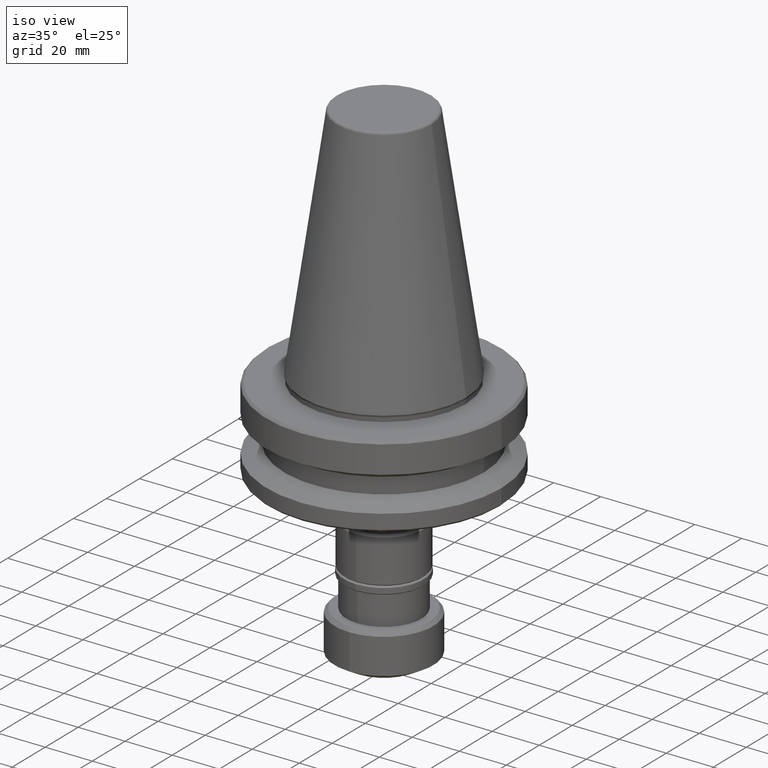
[diagram: clean part render]
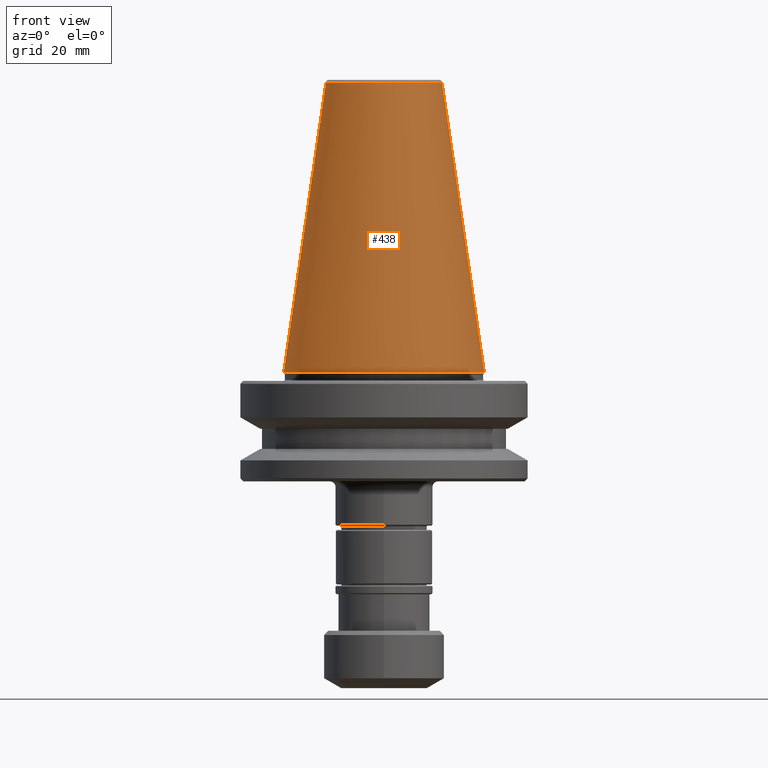
[diagram: tour spotlight — one face highlighted and labeled with its STEP entity id]
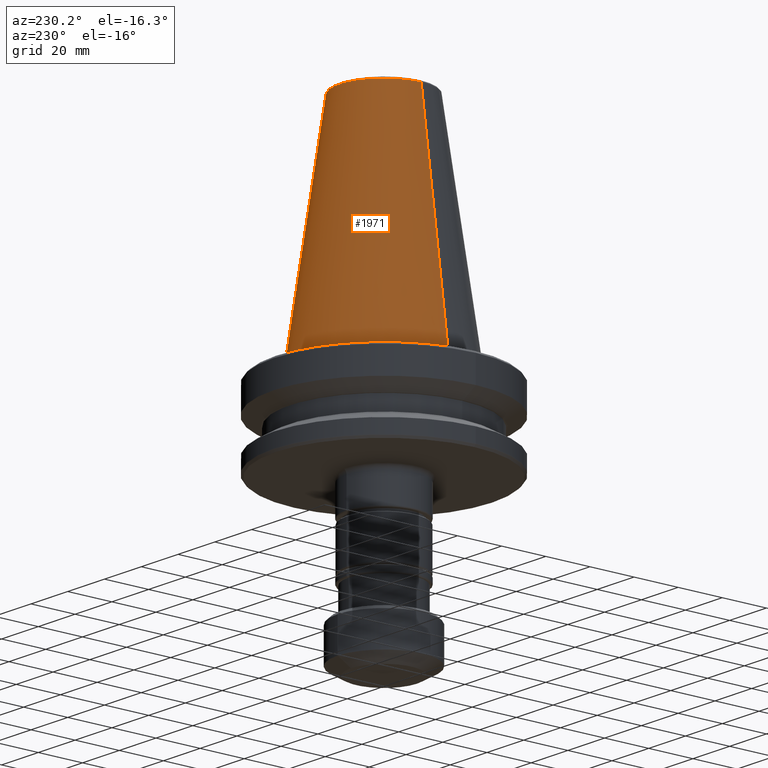
[diagram: tour spotlight — one face highlighted and labeled with its STEP entity id]
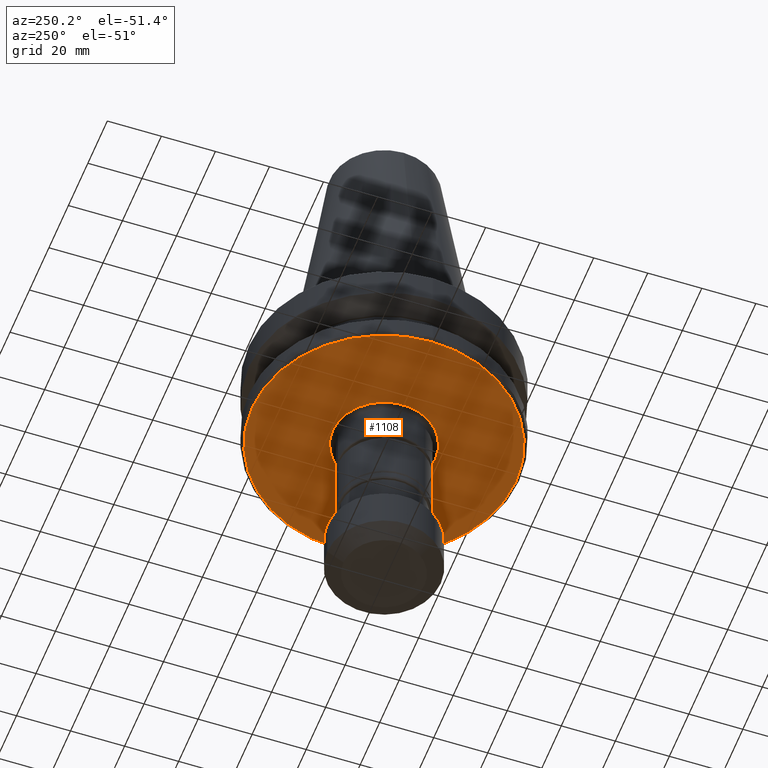
[diagram: tour spotlight — one face highlighted and labeled with its STEP entity id]
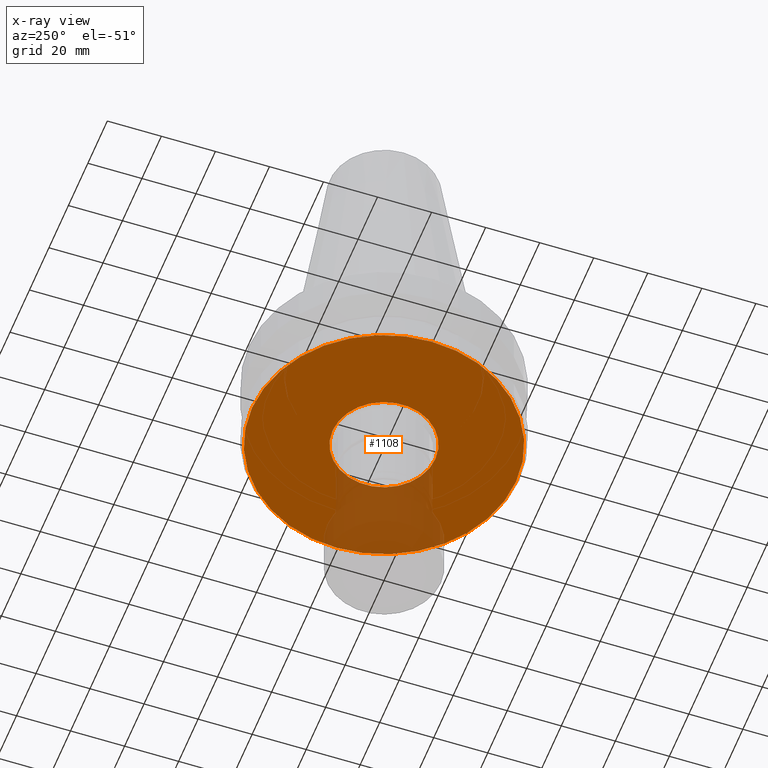
[diagram: x-ray of the same camera — body ghosted, this tour face saturated]
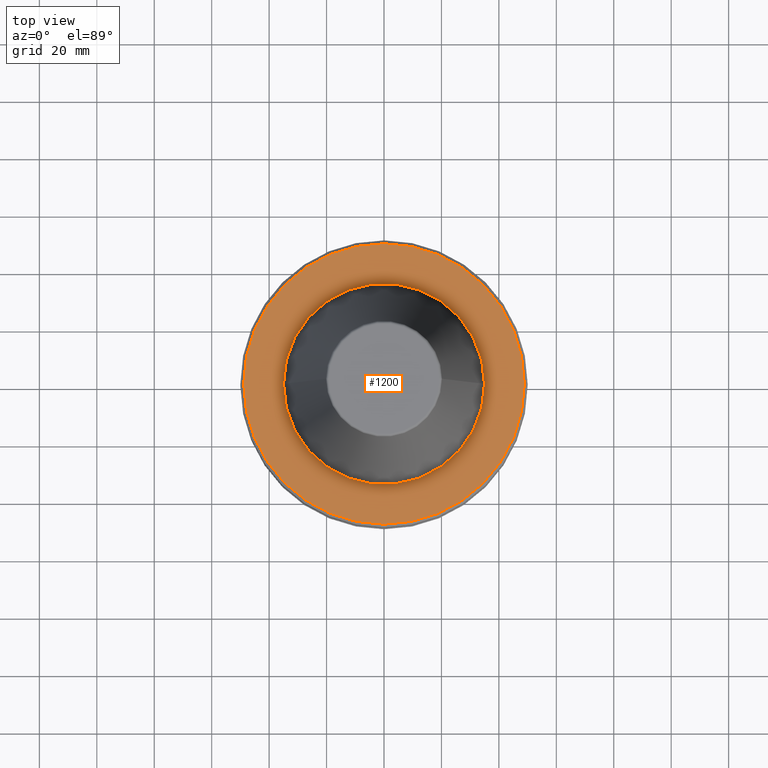
[diagram: tour spotlight — one face highlighted and labeled with its STEP entity id]
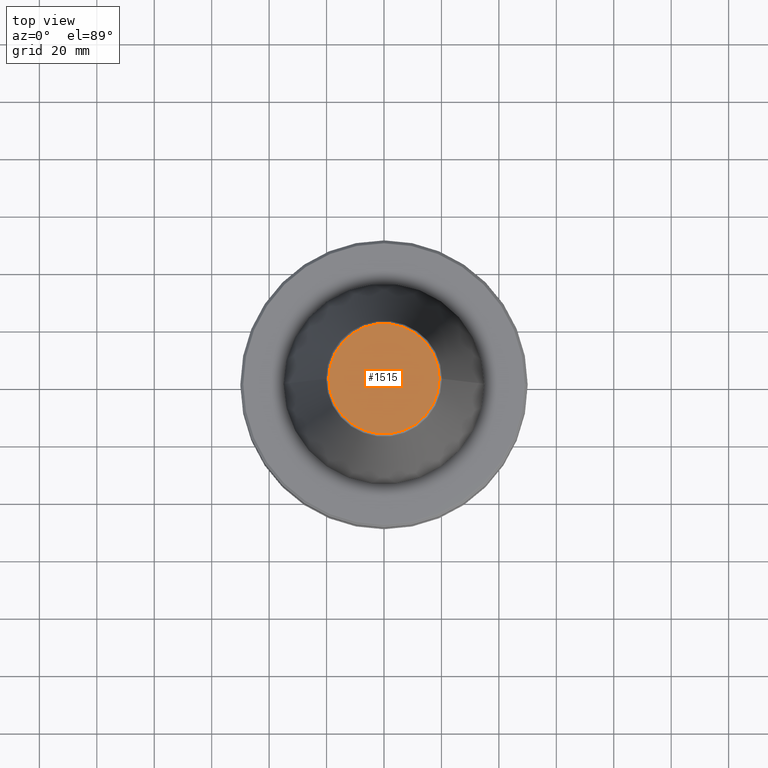
[diagram: tour spotlight — one face highlighted and labeled with its STEP entity id]
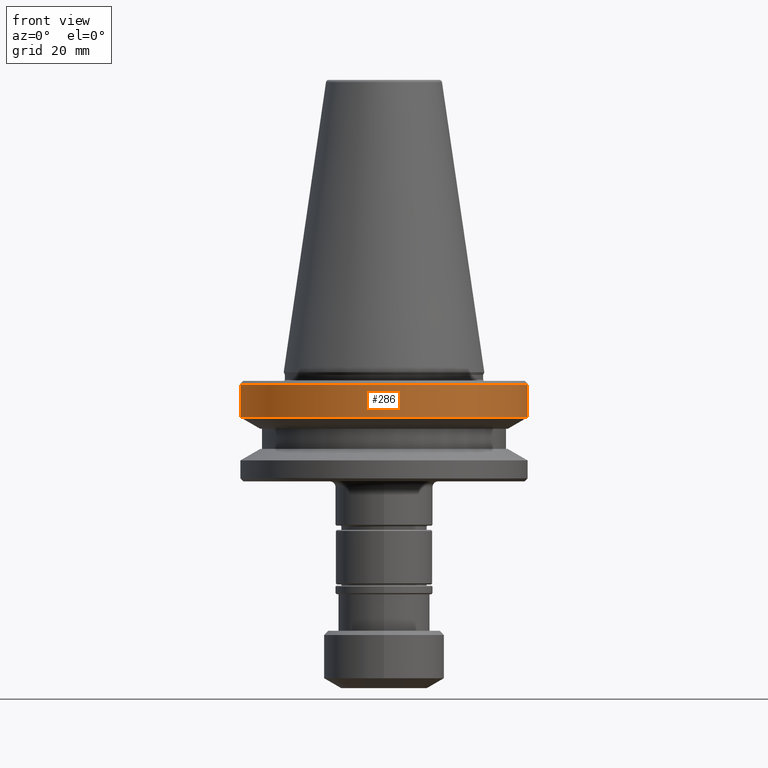
[diagram: tour spotlight — one face highlighted and labeled with its STEP entity id]
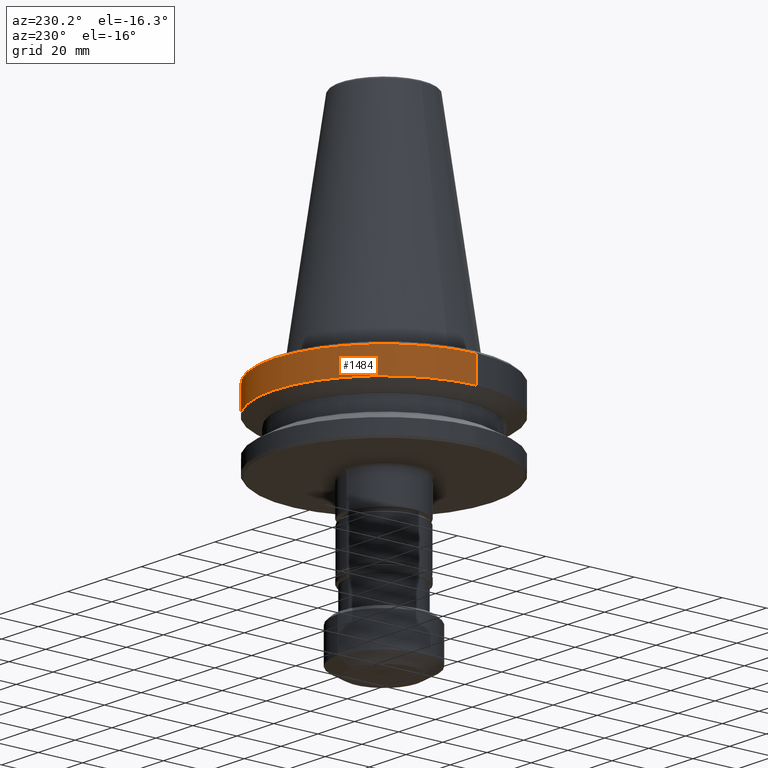
[diagram: tour spotlight — one face highlighted and labeled with its STEP entity id]
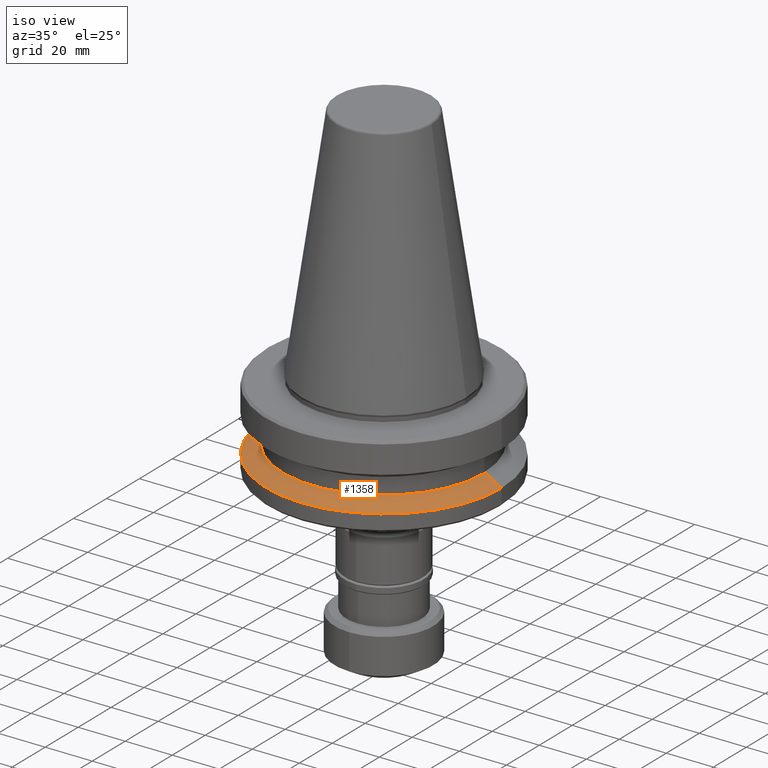
[diagram: tour spotlight — one face highlighted and labeled with its STEP entity id]
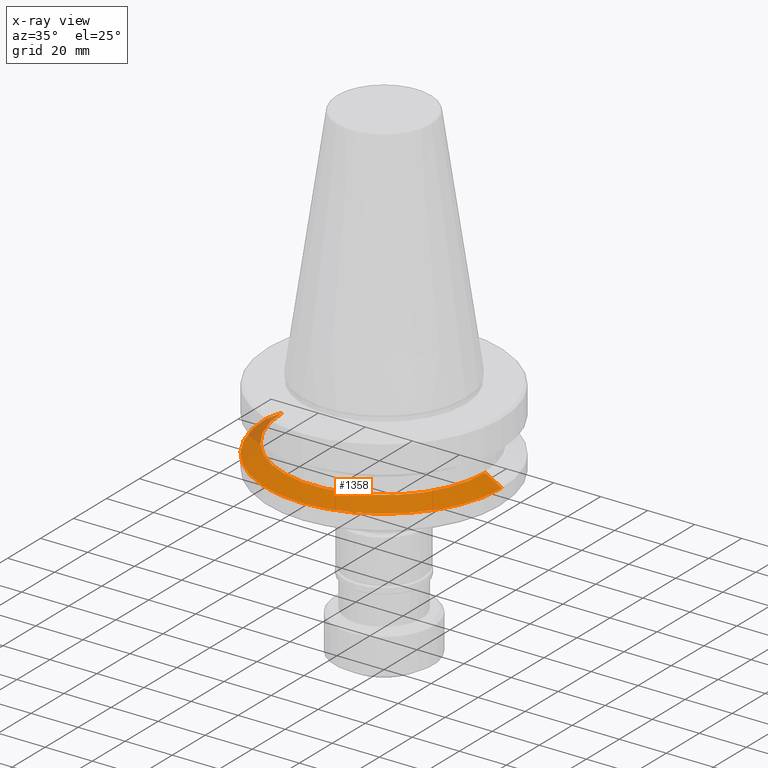
[diagram: x-ray of the same camera — body ghosted, this tour face saturated]
A machine part: a face-by-face anatomy tour. The part has 76 B-rep faces; the first image is the clean iso view, then the 8 largest visible faces are spotlighted one at a time (largest first), each with its STEP entity span.

Face 1 — front view, entity #438. In plain terms, the highlighted conical surface has half-angle 8.297 deg.
Definition (entity closure, byte-faithful):
#77 = CARTESIAN_POINT ( 'NONE',  ( 0.0000000000000000000, 0.0000000000000000000, 100.9443082272673300 ) ) ;
#106 = DIRECTION ( 'NONE',  ( 0.1443082272673070800, 1.767266086135364000E-017, -0.9895327864921743500 ) ) ;
#149 = DIRECTION ( 'NONE',  ( -0.0000000000000000000, -0.0000000000000000000, 1.000000000000000000 ) ) ;
#289 = EDGE_CURVE ( 'NONE', #1173, #889, #1236, .T. ) ;
#334 = ORIENTED_EDGE ( 'NONE', *, *, #355, .T. ) ;
#345 = CARTESIAN_POINT ( 'NONE',  ( 20.20381605152171600, 2.474253865805798900E-015, 100.9443082272673300 ) ) ;
#355 = EDGE_CURVE ( 'NONE', #1433, #1570, #1202, .T. ) ;
#361 = LINE ( 'NONE', #345, #1643 ) ;
#438 = ADVANCED_FACE ( 'NONE', ( #1150 ), #1126, .T. ) ;
#452 = VECTOR ( 'NONE', #1467, 1000.000000000000000 ) ;
#454 = DIRECTION ( 'NONE',  ( 1.000000000000000000, 0.0000000000000000000, 0.0000000000000000000 ) ) ;
#455 = LINE ( 'NONE', #1322, #452 ) ;
#888 = AXIS2_PLACEMENT_3D ( 'NONE', #1132, #1374, #1627 ) ;
#889 = VERTEX_POINT ( 'NONE', #1267 ) ;
#1126 = CONICAL_SURFACE ( 'NONE', #1906, 20.20381605152171600, 0.1448138465474190800 ) ;
#1132 = CARTESIAN_POINT ( 'NONE',  ( 0.0000000000000000000, 0.0000000000000000000, 100.9443082272673300 ) ) ;
#1150 = FACE_OUTER_BOUND ( 'NONE', #1508, .T. ) ;
#1173 = VERTEX_POINT ( 'NONE', #1863 ) ;
#1202 = CIRCLE ( 'NONE', #1473, 34.92500000000000400 ) ;
#1228 = EDGE_CURVE ( 'NONE', #1173, #1433, #455, .T. ) ;
#1236 = CIRCLE ( 'NONE', #888, 20.20381605152171600 ) ;
#1249 = CARTESIAN_POINT ( 'NONE',  ( 0.0000000000000000000, 0.0000000000000000000, 0.0000000000000000000 ) ) ;
#1260 = ORIENTED_EDGE ( 'NONE', *, *, #1228, .T. ) ;
#1267 = CARTESIAN_POINT ( 'NONE',  ( 20.20381605152171600, 3.375666405913964900E-015, 100.9443082272673300 ) ) ;
#1304 = ORIENTED_EDGE ( 'NONE', *, *, #1738, .F. ) ;
#1322 = CARTESIAN_POINT ( 'NONE',  ( -20.20381605152171600, 0.0000000000000000000, 100.9443082272673300 ) ) ;
#1345 = DIRECTION ( 'NONE',  ( -1.000000000000000000, 0.0000000000000000000, 0.0000000000000000000 ) ) ;
#1374 = DIRECTION ( 'NONE',  ( -0.0000000000000000000, -0.0000000000000000000, 1.000000000000000000 ) ) ;
#1382 = CARTESIAN_POINT ( 'NONE',  ( 34.92500000000000400, 0.0000000000000000000, 0.0000000000000000000 ) ) ;
#1433 = VERTEX_POINT ( 'NONE', #1808 ) ;
#1467 = DIRECTION ( 'NONE',  ( -0.1443082272673070800, 0.0000000000000000000, -0.9895327864921743500 ) ) ;
#1473 = AXIS2_PLACEMENT_3D ( 'NONE', #1249, #149, #454 ) ;
#1508 = EDGE_LOOP ( 'NONE', ( #1304, #1713, #1260, #334 ) ) ;
#1570 = VERTEX_POINT ( 'NONE', #1382 ) ;
#1627 = DIRECTION ( 'NONE',  ( 1.000000000000000000, 0.0000000000000000000, 0.0000000000000000000 ) ) ;
#1643 = VECTOR ( 'NONE', #106, 1000.000000000000000 ) ;
#1713 = ORIENTED_EDGE ( 'NONE', *, *, #289, .F. ) ;
#1738 = EDGE_CURVE ( 'NONE', #889, #1570, #361, .T. ) ;
#1808 = CARTESIAN_POINT ( 'NONE',  ( -34.92500000000000400, 4.277078946022131700E-015, 0.0000000000000000000 ) ) ;
#1863 = CARTESIAN_POINT ( 'NONE',  ( -20.20381605152171600, 0.0000000000000000000, 100.9443082272673300 ) ) ;
#1906 = AXIS2_PLACEMENT_3D ( 'NONE', #77, #1966, #1345 ) ;
#1966 = DIRECTION ( 'NONE',  ( 0.0000000000000000000, 0.0000000000000000000, -1.000000000000000000 ) ) ;

Face 2 — auxiliary view, entity #1971. In plain terms, the highlighted conical surface has half-angle 8.297 deg.
Definition (entity closure, byte-faithful):
#106 = DIRECTION ( 'NONE',  ( 0.1443082272673070800, 1.767266086135364000E-017, -0.9895327864921743500 ) ) ;
#199 = AXIS2_PLACEMENT_3D ( 'NONE', #564, #1219, #1112 ) ;
#345 = CARTESIAN_POINT ( 'NONE',  ( 20.20381605152171600, 2.474253865805798900E-015, 100.9443082272673300 ) ) ;
#361 = LINE ( 'NONE', #345, #1643 ) ;
#452 = VECTOR ( 'NONE', #1467, 1000.000000000000000 ) ;
#455 = LINE ( 'NONE', #1322, #452 ) ;
#468 = DIRECTION ( 'NONE',  ( -0.0000000000000000000, -0.0000000000000000000, 1.000000000000000000 ) ) ;
#475 = ORIENTED_EDGE ( 'NONE', *, *, #562, .T. ) ;
#533 = CIRCLE ( 'NONE', #199, 20.20381605152171600 ) ;
#562 = EDGE_CURVE ( 'NONE', #1570, #1433, #1099, .T. ) ;
#564 = CARTESIAN_POINT ( 'NONE',  ( 0.0000000000000000000, 0.0000000000000000000, 100.9443082272673300 ) ) ;
#839 = FACE_OUTER_BOUND ( 'NONE', #972, .T. ) ;
#889 = VERTEX_POINT ( 'NONE', #1267 ) ;
#941 = DIRECTION ( 'NONE',  ( -1.000000000000000000, 0.0000000000000000000, 0.0000000000000000000 ) ) ;
#972 = EDGE_LOOP ( 'NONE', ( #1117, #1578, #475, #1001 ) ) ;
#1001 = ORIENTED_EDGE ( 'NONE', *, *, #1228, .F. ) ;
#1053 = DIRECTION ( 'NONE',  ( 1.000000000000000000, 0.0000000000000000000, 0.0000000000000000000 ) ) ;
#1099 = CIRCLE ( 'NONE', #1163, 34.92500000000000400 ) ;
#1112 = DIRECTION ( 'NONE',  ( 1.000000000000000000, 0.0000000000000000000, 0.0000000000000000000 ) ) ;
#1117 = ORIENTED_EDGE ( 'NONE', *, *, #1153, .F. ) ;
#1153 = EDGE_CURVE ( 'NONE', #889, #1173, #533, .T. ) ;
#1163 = AXIS2_PLACEMENT_3D ( 'NONE', #1546, #468, #1053 ) ;
#1173 = VERTEX_POINT ( 'NONE', #1863 ) ;
#1193 = CARTESIAN_POINT ( 'NONE',  ( 0.0000000000000000000, 0.0000000000000000000, 100.9443082272673300 ) ) ;
#1219 = DIRECTION ( 'NONE',  ( -0.0000000000000000000, -0.0000000000000000000, 1.000000000000000000 ) ) ;
#1228 = EDGE_CURVE ( 'NONE', #1173, #1433, #455, .T. ) ;
#1267 = CARTESIAN_POINT ( 'NONE',  ( 20.20381605152171600, 3.375666405913964900E-015, 100.9443082272673300 ) ) ;
#1322 = CARTESIAN_POINT ( 'NONE',  ( -20.20381605152171600, 0.0000000000000000000, 100.9443082272673300 ) ) ;
#1382 = CARTESIAN_POINT ( 'NONE',  ( 34.92500000000000400, 0.0000000000000000000, 0.0000000000000000000 ) ) ;
#1433 = VERTEX_POINT ( 'NONE', #1808 ) ;
#1467 = DIRECTION ( 'NONE',  ( -0.1443082272673070800, 0.0000000000000000000, -0.9895327864921743500 ) ) ;
#1546 = CARTESIAN_POINT ( 'NONE',  ( 0.0000000000000000000, 0.0000000000000000000, 0.0000000000000000000 ) ) ;
#1570 = VERTEX_POINT ( 'NONE', #1382 ) ;
#1575 = AXIS2_PLACEMENT_3D ( 'NONE', #1193, #1632, #941 ) ;
#1578 = ORIENTED_EDGE ( 'NONE', *, *, #1738, .T. ) ;
#1632 = DIRECTION ( 'NONE',  ( 0.0000000000000000000, 0.0000000000000000000, -1.000000000000000000 ) ) ;
#1643 = VECTOR ( 'NONE', #106, 1000.000000000000000 ) ;
#1738 = EDGE_CURVE ( 'NONE', #889, #1570, #361, .T. ) ;
#1808 = CARTESIAN_POINT ( 'NONE',  ( -34.92500000000000400, 4.277078946022131700E-015, 0.0000000000000000000 ) ) ;
#1827 = CONICAL_SURFACE ( 'NONE', #1575, 20.20381605152171600, 0.1448138465474190800 ) ;
#1863 = CARTESIAN_POINT ( 'NONE',  ( -20.20381605152171600, 0.0000000000000000000, 100.9443082272673300 ) ) ;
#1971 = ADVANCED_FACE ( 'NONE', ( #839 ), #1827, .T. ) ;

Face 3 — auxiliary view, entity #1108. An x-ray twin of the same camera follows (body ghosted, this face saturated) — the face is partly hidden behind the body. In plain terms, the highlighted planar face has unit normal (0, 0, -1).
Definition (entity closure, byte-faithful):
#76 = ORIENTED_EDGE ( 'NONE', *, *, #1120, .F. ) ;
#89 = CARTESIAN_POINT ( 'NONE',  ( 2.326828918379171500E-015, 18.99999999999347000, -38.00000000000060400 ) ) ;
#109 = ORIENTED_EDGE ( 'NONE', *, *, #597, .F. ) ;
#146 = DIRECTION ( 'NONE',  ( 1.000000000000000000, 0.0000000000000000000, 0.0000000000000000000 ) ) ;
#155 = CARTESIAN_POINT ( 'NONE',  ( 48.83431457505076900, 0.0000000000000000000, -38.00000000000000700 ) ) ;
#186 = DIRECTION ( 'NONE',  ( 1.000000000000000000, 0.0000000000000000000, 0.0000000000000000000 ) ) ;
#220 = EDGE_CURVE ( 'NONE', #1676, #1767, #1346, .T. ) ;
#547 = FACE_OUTER_BOUND ( 'NONE', #1479, .T. ) ;
#550 = AXIS2_PLACEMENT_3D ( 'NONE', #1950, #1726, #1474 ) ;
#557 = FACE_BOUND ( 'NONE', #1141, .T. ) ;
#571 = VERTEX_POINT ( 'NONE', #155 ) ;
#579 = CIRCLE ( 'NONE', #1901, 18.99999999999347400 ) ;
#597 = EDGE_CURVE ( 'NONE', #571, #1885, #1029, .T. ) ;
#603 = ORIENTED_EDGE ( 'NONE', *, *, #1739, .F. ) ;
#754 = CARTESIAN_POINT ( 'NONE',  ( -48.83431457505076900, 5.997797824413796000E-015, -38.00000000000000700 ) ) ;
#766 = DIRECTION ( 'NONE',  ( -0.0000000000000000000, -0.0000000000000000000, 1.000000000000000000 ) ) ;
#811 = CARTESIAN_POINT ( 'NONE',  ( 0.0000000000000000000, -18.99999999999347700, -38.00000000000050400 ) ) ;
#829 = AXIS2_PLACEMENT_3D ( 'NONE', #1968, #766, #146 ) ;
#962 = CARTESIAN_POINT ( 'NONE',  ( 0.0000000000000000000, 0.0000000000000000000, -38.00000000000000700 ) ) ;
#985 = DIRECTION ( 'NONE',  ( 0.0000000000000000000, 0.0000000000000000000, -1.000000000000000000 ) ) ;
#1029 = CIRCLE ( 'NONE', #1638, 48.83431457505076900 ) ;
#1108 = ADVANCED_FACE ( 'NONE', ( #557, #547 ), #1879, .T. ) ;
#1120 = EDGE_CURVE ( 'NONE', #1767, #1676, #579, .T. ) ;
#1141 = EDGE_LOOP ( 'NONE', ( #76, #1323 ) ) ;
#1177 = DIRECTION ( 'NONE',  ( -0.0000000000000000000, -0.0000000000000000000, 1.000000000000000000 ) ) ;
#1323 = ORIENTED_EDGE ( 'NONE', *, *, #220, .F. ) ;
#1346 = CIRCLE ( 'NONE', #550, 18.99999999999347400 ) ;
#1410 = DIRECTION ( 'NONE',  ( 0.0000000000000000000, -1.000000000000000000, 2.556434596177225400E-015 ) ) ;
#1474 = DIRECTION ( 'NONE',  ( 0.0000000000000000000, -1.000000000000000000, 2.556434596177225400E-015 ) ) ;
#1479 = EDGE_LOOP ( 'NONE', ( #109, #603 ) ) ;
#1638 = AXIS2_PLACEMENT_3D ( 'NONE', #962, #1177, #186 ) ;
#1676 = VERTEX_POINT ( 'NONE', #89 ) ;
#1687 = DIRECTION ( 'NONE',  ( 0.0000000000000000000, -2.698458740408409400E-015, -1.000000000000000000 ) ) ;
#1726 = DIRECTION ( 'NONE',  ( 0.0000000000000000000, -2.698458740408409400E-015, -1.000000000000000000 ) ) ;
#1737 = CIRCLE ( 'NONE', #829, 48.83431457505076900 ) ;
#1739 = EDGE_CURVE ( 'NONE', #1885, #571, #1737, .T. ) ;
#1767 = VERTEX_POINT ( 'NONE', #811 ) ;
#1879 = PLANE ( 'NONE',  #2004 ) ;
#1885 = VERTEX_POINT ( 'NONE', #754 ) ;
#1901 = AXIS2_PLACEMENT_3D ( 'NONE', #2011, #1687, #1410 ) ;
#1911 = CARTESIAN_POINT ( 'NONE',  ( 0.0000000000000000000, 1.079888069047196800E-014, -38.00000000000000700 ) ) ;
#1950 = CARTESIAN_POINT ( 'NONE',  ( 0.0000000000000000000, -6.938893903907228400E-015, -38.00000000000000700 ) ) ;
#1968 = CARTESIAN_POINT ( 'NONE',  ( 0.0000000000000000000, 0.0000000000000000000, -38.00000000000000700 ) ) ;
#2004 = AXIS2_PLACEMENT_3D ( 'NONE', #1911, #985, #2034 ) ;
#2011 = CARTESIAN_POINT ( 'NONE',  ( 0.0000000000000000000, -6.938893903907228400E-015, -38.00000000000000700 ) ) ;
#2034 = DIRECTION ( 'NONE',  ( -1.000000000000000000, 0.0000000000000000000, -0.0000000000000000000 ) ) ;

Face 4 — top view, entity #1200. In plain terms, the highlighted planar face has unit normal (0, -0, 1).
Definition (entity closure, byte-faithful):
#4 = AXIS2_PLACEMENT_3D ( 'NONE', #1131, #1724, #830 ) ;
#7 = CARTESIAN_POINT ( 'NONE',  ( 0.0000000000000000000, 0.0000000000000000000, -3.000000000000002700 ) ) ;
#15 = CARTESIAN_POINT ( 'NONE',  ( 35.00000000000000000, 0.0000000000000000000, -3.000000000000003600 ) ) ;
#59 = ORIENTED_EDGE ( 'NONE', *, *, #1152, .T. ) ;
#73 = AXIS2_PLACEMENT_3D ( 'NONE', #7, #1728, #834 ) ;
#173 = CIRCLE ( 'NONE', #1925, 48.83431457505076200 ) ;
#197 = CIRCLE ( 'NONE', #1490, 35.00000000000000000 ) ;
#236 = DIRECTION ( 'NONE',  ( 1.000000000000000000, 0.0000000000000000000, 0.0000000000000000000 ) ) ;
#335 = ORIENTED_EDGE ( 'NONE', *, *, #1458, .F. ) ;
#437 = CARTESIAN_POINT ( 'NONE',  ( 0.0000000000000000000, 0.0000000000000000000, -3.000000000000002700 ) ) ;
#488 = FACE_BOUND ( 'NONE', #707, .T. ) ;
#514 = FACE_OUTER_BOUND ( 'NONE', #883, .T. ) ;
#554 = CIRCLE ( 'NONE', #73, 48.83431457505076200 ) ;
#563 = CARTESIAN_POINT ( 'NONE',  ( -35.00000000000000000, 4.286263797015737300E-015, -3.000000000000003600 ) ) ;
#707 = EDGE_LOOP ( 'NONE', ( #335, #1140 ) ) ;
#715 = CIRCLE ( 'NONE', #4, 35.00000000000000000 ) ;
#756 = VERTEX_POINT ( 'NONE', #1327 ) ;
#774 = PLANE ( 'NONE',  #840 ) ;
#830 = DIRECTION ( 'NONE',  ( 1.000000000000000000, 0.0000000000000000000, 0.0000000000000000000 ) ) ;
#834 = DIRECTION ( 'NONE',  ( 1.000000000000000000, 0.0000000000000000000, 0.0000000000000000000 ) ) ;
#840 = AXIS2_PLACEMENT_3D ( 'NONE', #1455, #1605, #236 ) ;
#883 = EDGE_LOOP ( 'NONE', ( #1138, #59 ) ) ;
#905 = EDGE_CURVE ( 'NONE', #1886, #1137, #715, .T. ) ;
#921 = CARTESIAN_POINT ( 'NONE',  ( 0.0000000000000000000, 0.0000000000000000000, -3.000000000000002700 ) ) ;
#1082 = DIRECTION ( 'NONE',  ( 1.000000000000000000, 0.0000000000000000000, 0.0000000000000000000 ) ) ;
#1131 = CARTESIAN_POINT ( 'NONE',  ( 0.0000000000000000000, 0.0000000000000000000, -3.000000000000002700 ) ) ;
#1137 = VERTEX_POINT ( 'NONE', #15 ) ;
#1138 = ORIENTED_EDGE ( 'NONE', *, *, #1487, .T. ) ;
#1140 = ORIENTED_EDGE ( 'NONE', *, *, #905, .F. ) ;
#1152 = EDGE_CURVE ( 'NONE', #1860, #756, #554, .T. ) ;
#1200 = ADVANCED_FACE ( 'NONE', ( #514, #488 ), #774, .T. ) ;
#1270 = DIRECTION ( 'NONE',  ( 1.000000000000000000, 0.0000000000000000000, 0.0000000000000000000 ) ) ;
#1327 = CARTESIAN_POINT ( 'NONE',  ( 48.83431457505076200, 0.0000000000000000000, -3.000000000000002700 ) ) ;
#1455 = CARTESIAN_POINT ( 'NONE',  ( 0.0000000000000000000, -9.404460191536678200E-017, -3.000000000000000900 ) ) ;
#1458 = EDGE_CURVE ( 'NONE', #1137, #1886, #197, .T. ) ;
#1487 = EDGE_CURVE ( 'NONE', #756, #1860, #173, .T. ) ;
#1490 = AXIS2_PLACEMENT_3D ( 'NONE', #921, #1982, #1082 ) ;
#1513 = DIRECTION ( 'NONE',  ( -0.0000000000000000000, -0.0000000000000000000, 1.000000000000000000 ) ) ;
#1605 = DIRECTION ( 'NONE',  ( 0.0000000000000000000, -0.0000000000000000000, 1.000000000000000000 ) ) ;
#1724 = DIRECTION ( 'NONE',  ( -0.0000000000000000000, -0.0000000000000000000, 1.000000000000000000 ) ) ;
#1728 = DIRECTION ( 'NONE',  ( -0.0000000000000000000, -0.0000000000000000000, 1.000000000000000000 ) ) ;
#1860 = VERTEX_POINT ( 'NONE', #1927 ) ;
#1886 = VERTEX_POINT ( 'NONE', #563 ) ;
#1925 = AXIS2_PLACEMENT_3D ( 'NONE', #437, #1513, #1270 ) ;
#1927 = CARTESIAN_POINT ( 'NONE',  ( -48.83431457505076200, 5.997797824413796000E-015, -3.000000000000002700 ) ) ;
#1982 = DIRECTION ( 'NONE',  ( -0.0000000000000000000, -0.0000000000000000000, 1.000000000000000000 ) ) ;

Face 5 — top view, entity #1515. In plain terms, the highlighted planar face has unit normal (0, -0, 1).
Definition (entity closure, byte-faithful):
#92 = FACE_OUTER_BOUND ( 'NONE', #936, .T. ) ;
#116 = CIRCLE ( 'NONE', #864, 19.21428326502954000 ) ;
#141 = DIRECTION ( 'NONE',  ( 1.000000000000000000, 0.0000000000000000000, 0.0000000000000000000 ) ) ;
#151 = DIRECTION ( 'NONE',  ( -0.0000000000000000000, -0.0000000000000000000, 1.000000000000000000 ) ) ;
#152 = CARTESIAN_POINT ( 'NONE',  ( 19.21428326502954000, 0.0000000000000000000, 101.8000000000000000 ) ) ;
#154 = CARTESIAN_POINT ( 'NONE',  ( -19.21428326502954000, 2.413662457824347900E-015, 101.8000000000000000 ) ) ;
#365 = EDGE_CURVE ( 'NONE', #518, #1647, #1229, .T. ) ;
#457 = CARTESIAN_POINT ( 'NONE',  ( 0.0000000000000000000, 0.0000000000000000000, 101.8000000000000000 ) ) ;
#518 = VERTEX_POINT ( 'NONE', #152 ) ;
#697 = DIRECTION ( 'NONE',  ( 1.000000000000000000, 0.0000000000000000000, 0.0000000000000000000 ) ) ;
#751 = AXIS2_PLACEMENT_3D ( 'NONE', #779, #1107, #141 ) ;
#779 = CARTESIAN_POINT ( 'NONE',  ( 0.0000000000000000000, 0.0000000000000000000, 101.8000000000000000 ) ) ;
#864 = AXIS2_PLACEMENT_3D ( 'NONE', #1111, #151, #1252 ) ;
#936 = EDGE_LOOP ( 'NONE', ( #1469, #1092 ) ) ;
#1092 = ORIENTED_EDGE ( 'NONE', *, *, #1527, .T. ) ;
#1107 = DIRECTION ( 'NONE',  ( 0.0000000000000000000, -0.0000000000000000000, 1.000000000000000000 ) ) ;
#1111 = CARTESIAN_POINT ( 'NONE',  ( 0.0000000000000000000, 0.0000000000000000000, 101.8000000000000000 ) ) ;
#1229 = CIRCLE ( 'NONE', #1572, 19.21428326502954000 ) ;
#1252 = DIRECTION ( 'NONE',  ( 1.000000000000000000, 0.0000000000000000000, 0.0000000000000000000 ) ) ;
#1281 = DIRECTION ( 'NONE',  ( -0.0000000000000000000, -0.0000000000000000000, 1.000000000000000000 ) ) ;
#1469 = ORIENTED_EDGE ( 'NONE', *, *, #365, .T. ) ;
#1515 = ADVANCED_FACE ( 'NONE', ( #92 ), #2007, .T. ) ;
#1527 = EDGE_CURVE ( 'NONE', #1647, #518, #116, .T. ) ;
#1572 = AXIS2_PLACEMENT_3D ( 'NONE', #457, #1281, #697 ) ;
#1647 = VERTEX_POINT ( 'NONE', #154 ) ;
#2007 = PLANE ( 'NONE',  #751 ) ;

Face 6 — front view, entity #286. In plain terms, the highlighted cylindrical surface (partial cylindrical patch) has radius 50 mm, axis along (-0, -0, 1).
Definition (entity closure, byte-faithful):
#33 = CARTESIAN_POINT ( 'NONE',  ( 50.00000000000000000, 0.0000000000000000000, -4.165685424949244500 ) ) ;
#93 = DIRECTION ( 'NONE',  ( 1.000000000000000000, 0.0000000000000000000, 0.0000000000000000000 ) ) ;
#239 = ORIENTED_EDGE ( 'NONE', *, *, #1768, .F. ) ;
#286 = ADVANCED_FACE ( 'NONE', ( #1259 ), #819, .T. ) ;
#300 = VECTOR ( 'NONE', #1169, 1000.000000000000000 ) ;
#328 = EDGE_CURVE ( 'NONE', #358, #1688, #1238, .T. ) ;
#358 = VERTEX_POINT ( 'NONE', #1780 ) ;
#448 = VERTEX_POINT ( 'NONE', #1290 ) ;
#480 = CARTESIAN_POINT ( 'NONE',  ( 0.0000000000000000000, 0.0000000000000000000, 69.75694866325665100 ) ) ;
#489 = DIRECTION ( 'NONE',  ( -0.0000000000000000000, -0.0000000000000000000, 1.000000000000000000 ) ) ;
#505 = VERTEX_POINT ( 'NONE', #1951 ) ;
#539 = CARTESIAN_POINT ( 'NONE',  ( 50.00000000000000000, 0.0000000000000000000, 69.75694866325665100 ) ) ;
#611 = DIRECTION ( 'NONE',  ( -0.0000000000000000000, -0.0000000000000000000, 1.000000000000000000 ) ) ;
#614 = DIRECTION ( 'NONE',  ( 1.000000000000000000, 0.0000000000000000000, 0.0000000000000000000 ) ) ;
#627 = DIRECTION ( 'NONE',  ( -0.0000000000000000000, -0.0000000000000000000, 1.000000000000000000 ) ) ;
#692 = LINE ( 'NONE', #1308, #300 ) ;
#770 = EDGE_CURVE ( 'NONE', #505, #358, #848, .T. ) ;
#819 = CYLINDRICAL_SURFACE ( 'NONE', #1292, 50.00000000000000000 ) ;
#848 = CIRCLE ( 'NONE', #1596, 50.00000000000000000 ) ;
#984 = EDGE_CURVE ( 'NONE', #505, #448, #692, .T. ) ;
#1149 = AXIS2_PLACEMENT_3D ( 'NONE', #1298, #489, #1214 ) ;
#1157 = ORIENTED_EDGE ( 'NONE', *, *, #328, .T. ) ;
#1169 = DIRECTION ( 'NONE',  ( -0.0000000000000000000, -0.0000000000000000000, 1.000000000000000000 ) ) ;
#1199 = VECTOR ( 'NONE', #611, 1000.000000000000000 ) ;
#1214 = DIRECTION ( 'NONE',  ( 1.000000000000000000, 0.0000000000000000000, 0.0000000000000000000 ) ) ;
#1238 = LINE ( 'NONE', #539, #1199 ) ;
#1259 = FACE_OUTER_BOUND ( 'NONE', #1539, .T. ) ;
#1290 = CARTESIAN_POINT ( 'NONE',  ( -50.00000000000000000, 6.123233995736766100E-015, -4.165685424949244500 ) ) ;
#1292 = AXIS2_PLACEMENT_3D ( 'NONE', #480, #627, #93 ) ;
#1298 = CARTESIAN_POINT ( 'NONE',  ( 0.0000000000000000000, 0.0000000000000000000, -4.165685424949244500 ) ) ;
#1308 = CARTESIAN_POINT ( 'NONE',  ( -50.00000000000000000, 6.123233995736766100E-015, 69.75694866325665100 ) ) ;
#1521 = DIRECTION ( 'NONE',  ( -0.0000000000000000000, -0.0000000000000000000, 1.000000000000000000 ) ) ;
#1539 = EDGE_LOOP ( 'NONE', ( #1953, #1650, #1157, #239 ) ) ;
#1596 = AXIS2_PLACEMENT_3D ( 'NONE', #1668, #1521, #614 ) ;
#1650 = ORIENTED_EDGE ( 'NONE', *, *, #770, .T. ) ;
#1668 = CARTESIAN_POINT ( 'NONE',  ( 0.0000000000000000000, 0.0000000000000000000, -15.70022000322676600 ) ) ;
#1688 = VERTEX_POINT ( 'NONE', #33 ) ;
#1768 = EDGE_CURVE ( 'NONE', #448, #1688, #2037, .T. ) ;
#1780 = CARTESIAN_POINT ( 'NONE',  ( 50.00000000000000000, 0.0000000000000000000, -15.70022000322676600 ) ) ;
#1951 = CARTESIAN_POINT ( 'NONE',  ( -50.00000000000000000, 6.123233995736766100E-015, -15.70022000322676600 ) ) ;
#1953 = ORIENTED_EDGE ( 'NONE', *, *, #984, .F. ) ;
#2037 = CIRCLE ( 'NONE', #1149, 50.00000000000000000 ) ;

Face 7 — auxiliary view, entity #1484. In plain terms, the highlighted cylindrical surface (partial cylindrical patch) has radius 50 mm, axis along (-0, -0, 1).
Definition (entity closure, byte-faithful):
#29 = EDGE_CURVE ( 'NONE', #1688, #448, #1437, .T. ) ;
#33 = CARTESIAN_POINT ( 'NONE',  ( 50.00000000000000000, 0.0000000000000000000, -4.165685424949244500 ) ) ;
#168 = FACE_OUTER_BOUND ( 'NONE', #517, .T. ) ;
#175 = CYLINDRICAL_SURFACE ( 'NONE', #2031, 50.00000000000000000 ) ;
#201 = CIRCLE ( 'NONE', #1393, 50.00000000000000000 ) ;
#203 = DIRECTION ( 'NONE',  ( 1.000000000000000000, 0.0000000000000000000, 0.0000000000000000000 ) ) ;
#254 = DIRECTION ( 'NONE',  ( -0.0000000000000000000, -0.0000000000000000000, 1.000000000000000000 ) ) ;
#284 = DIRECTION ( 'NONE',  ( 1.000000000000000000, 0.0000000000000000000, 0.0000000000000000000 ) ) ;
#300 = VECTOR ( 'NONE', #1169, 1000.000000000000000 ) ;
#328 = EDGE_CURVE ( 'NONE', #358, #1688, #1238, .T. ) ;
#358 = VERTEX_POINT ( 'NONE', #1780 ) ;
#402 = ORIENTED_EDGE ( 'NONE', *, *, #328, .F. ) ;
#448 = VERTEX_POINT ( 'NONE', #1290 ) ;
#505 = VERTEX_POINT ( 'NONE', #1951 ) ;
#517 = EDGE_LOOP ( 'NONE', ( #1987, #1877, #1938, #402 ) ) ;
#539 = CARTESIAN_POINT ( 'NONE',  ( 50.00000000000000000, 0.0000000000000000000, 69.75694866325665100 ) ) ;
#592 = DIRECTION ( 'NONE',  ( 1.000000000000000000, 0.0000000000000000000, 0.0000000000000000000 ) ) ;
#611 = DIRECTION ( 'NONE',  ( -0.0000000000000000000, -0.0000000000000000000, 1.000000000000000000 ) ) ;
#692 = LINE ( 'NONE', #1308, #300 ) ;
#946 = CARTESIAN_POINT ( 'NONE',  ( 0.0000000000000000000, 0.0000000000000000000, -4.165685424949244500 ) ) ;
#984 = EDGE_CURVE ( 'NONE', #505, #448, #692, .T. ) ;
#1038 = AXIS2_PLACEMENT_3D ( 'NONE', #946, #1489, #203 ) ;
#1169 = DIRECTION ( 'NONE',  ( -0.0000000000000000000, -0.0000000000000000000, 1.000000000000000000 ) ) ;
#1199 = VECTOR ( 'NONE', #611, 1000.000000000000000 ) ;
#1238 = LINE ( 'NONE', #539, #1199 ) ;
#1290 = CARTESIAN_POINT ( 'NONE',  ( -50.00000000000000000, 6.123233995736766100E-015, -4.165685424949244500 ) ) ;
#1308 = CARTESIAN_POINT ( 'NONE',  ( -50.00000000000000000, 6.123233995736766100E-015, 69.75694866325665100 ) ) ;
#1348 = DIRECTION ( 'NONE',  ( -0.0000000000000000000, -0.0000000000000000000, 1.000000000000000000 ) ) ;
#1393 = AXIS2_PLACEMENT_3D ( 'NONE', #1774, #1348, #284 ) ;
#1437 = CIRCLE ( 'NONE', #1038, 50.00000000000000000 ) ;
#1444 = EDGE_CURVE ( 'NONE', #358, #505, #201, .T. ) ;
#1484 = ADVANCED_FACE ( 'NONE', ( #168 ), #175, .T. ) ;
#1489 = DIRECTION ( 'NONE',  ( -0.0000000000000000000, -0.0000000000000000000, 1.000000000000000000 ) ) ;
#1660 = CARTESIAN_POINT ( 'NONE',  ( 0.0000000000000000000, 0.0000000000000000000, 69.75694866325665100 ) ) ;
#1688 = VERTEX_POINT ( 'NONE', #33 ) ;
#1774 = CARTESIAN_POINT ( 'NONE',  ( 0.0000000000000000000, 0.0000000000000000000, -15.70022000322676600 ) ) ;
#1780 = CARTESIAN_POINT ( 'NONE',  ( 50.00000000000000000, 0.0000000000000000000, -15.70022000322676600 ) ) ;
#1877 = ORIENTED_EDGE ( 'NONE', *, *, #984, .T. ) ;
#1938 = ORIENTED_EDGE ( 'NONE', *, *, #29, .F. ) ;
#1951 = CARTESIAN_POINT ( 'NONE',  ( -50.00000000000000000, 6.123233995736766100E-015, -15.70022000322676600 ) ) ;
#1987 = ORIENTED_EDGE ( 'NONE', *, *, #1444, .T. ) ;
#2031 = AXIS2_PLACEMENT_3D ( 'NONE', #1660, #254, #592 ) ;

Face 8 — iso view, entity #1358. An x-ray twin of the same camera follows (body ghosted, this face saturated) — the face is partly hidden behind the body. In plain terms, the highlighted conical surface has half-angle 60 deg.
Definition (entity closure, byte-faithful):
#1 = LINE ( 'NONE', #1113, #27 ) ;
#27 = VECTOR ( 'NONE', #622, 1000.000000000000000 ) ;
#44 = CARTESIAN_POINT ( 'NONE',  ( -50.00000000000000000, 6.123233995736766100E-015, -30.69977999677324500 ) ) ;
#217 = CONICAL_SURFACE ( 'NONE', #800, 43.07217782649103600, 1.047197551196599600 ) ;
#314 = CARTESIAN_POINT ( 'NONE',  ( -43.07217782649103600, 0.0000000000000000000, -26.70000000000000300 ) ) ;
#322 = FACE_OUTER_BOUND ( 'NONE', #1412, .T. ) ;
#333 = CARTESIAN_POINT ( 'NONE',  ( 0.0000000000000000000, 0.0000000000000000000, -30.69977999677324500 ) ) ;
#484 = DIRECTION ( 'NONE',  ( 1.000000000000000000, 0.0000000000000000000, 0.0000000000000000000 ) ) ;
#501 = CIRCLE ( 'NONE', #516, 50.00000000000000000 ) ;
#516 = AXIS2_PLACEMENT_3D ( 'NONE', #333, #1404, #484 ) ;
#537 = CARTESIAN_POINT ( 'NONE',  ( 0.0000000000000000000, 0.0000000000000000000, -26.70000000000000300 ) ) ;
#544 = VERTEX_POINT ( 'NONE', #1524 ) ;
#545 = DIRECTION ( 'NONE',  ( -0.0000000000000000000, -0.0000000000000000000, 1.000000000000000000 ) ) ;
#622 = DIRECTION ( 'NONE',  ( 0.8660254037844396000, 1.060575238724908000E-016, -0.4999999999999983900 ) ) ;
#775 = DIRECTION ( 'NONE',  ( -0.8660254037844396000, 0.0000000000000000000, -0.4999999999999983900 ) ) ;
#800 = AXIS2_PLACEMENT_3D ( 'NONE', #902, #1788, #1626 ) ;
#902 = CARTESIAN_POINT ( 'NONE',  ( 0.0000000000000000000, 0.0000000000000000000, -26.70000000000000300 ) ) ;
#916 = ORIENTED_EDGE ( 'NONE', *, *, #1652, .F. ) ;
#956 = LINE ( 'NONE', #1880, #1630 ) ;
#1043 = VERTEX_POINT ( 'NONE', #44 ) ;
#1052 = ORIENTED_EDGE ( 'NONE', *, *, #1714, .T. ) ;
#1113 = CARTESIAN_POINT ( 'NONE',  ( 43.07217782649103600, 5.274820470751785100E-015, -26.70000000000000300 ) ) ;
#1240 = AXIS2_PLACEMENT_3D ( 'NONE', #537, #545, #1610 ) ;
#1358 = ADVANCED_FACE ( 'NONE', ( #322 ), #217, .T. ) ;
#1377 = CIRCLE ( 'NONE', #1240, 43.07217782649103600 ) ;
#1404 = DIRECTION ( 'NONE',  ( -0.0000000000000000000, -0.0000000000000000000, 1.000000000000000000 ) ) ;
#1412 = EDGE_LOOP ( 'NONE', ( #916, #1755, #1052, #1431 ) ) ;
#1431 = ORIENTED_EDGE ( 'NONE', *, *, #2041, .T. ) ;
#1524 = CARTESIAN_POINT ( 'NONE',  ( 43.07217782649103600, 5.699027233244276000E-015, -26.70000000000000300 ) ) ;
#1610 = DIRECTION ( 'NONE',  ( 1.000000000000000000, 0.0000000000000000000, 0.0000000000000000000 ) ) ;
#1622 = VERTEX_POINT ( 'NONE', #314 ) ;
#1626 = DIRECTION ( 'NONE',  ( -1.000000000000000000, 0.0000000000000000000, 0.0000000000000000000 ) ) ;
#1630 = VECTOR ( 'NONE', #775, 1000.000000000000000 ) ;
#1652 = EDGE_CURVE ( 'NONE', #544, #1997, #1, .T. ) ;
#1694 = CARTESIAN_POINT ( 'NONE',  ( 50.00000000000000000, 0.0000000000000000000, -30.69977999677324500 ) ) ;
#1714 = EDGE_CURVE ( 'NONE', #1622, #1043, #956, .T. ) ;
#1755 = ORIENTED_EDGE ( 'NONE', *, *, #1769, .F. ) ;
#1769 = EDGE_CURVE ( 'NONE', #1622, #544, #1377, .T. ) ;
#1788 = DIRECTION ( 'NONE',  ( 0.0000000000000000000, 0.0000000000000000000, -1.000000000000000000 ) ) ;
#1880 = CARTESIAN_POINT ( 'NONE',  ( -43.07217782649103600, 0.0000000000000000000, -26.70000000000000300 ) ) ;
#1997 = VERTEX_POINT ( 'NONE', #1694 ) ;
#2041 = EDGE_CURVE ( 'NONE', #1043, #1997, #501, .T. ) ;